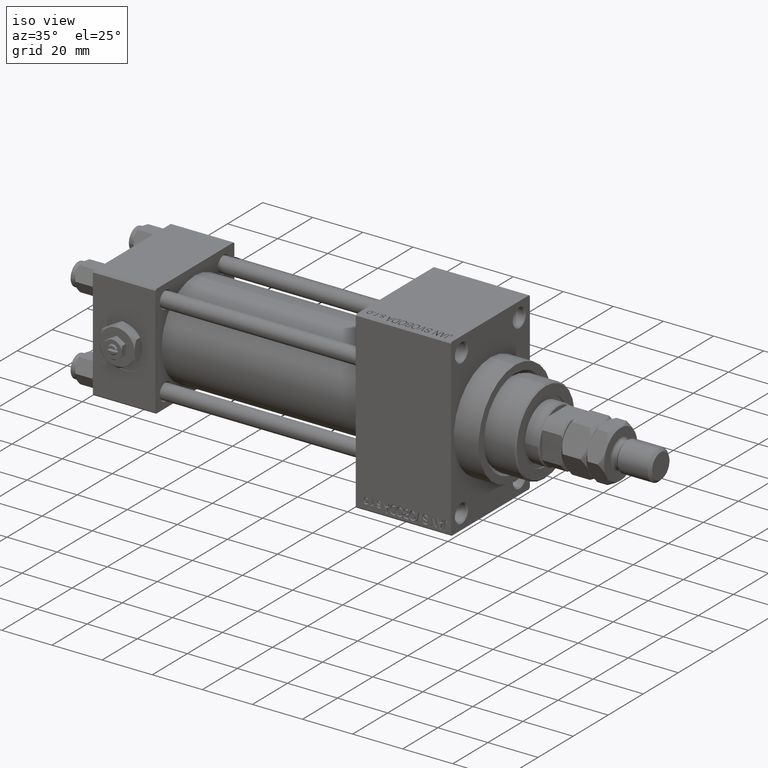
[diagram: clean part render]
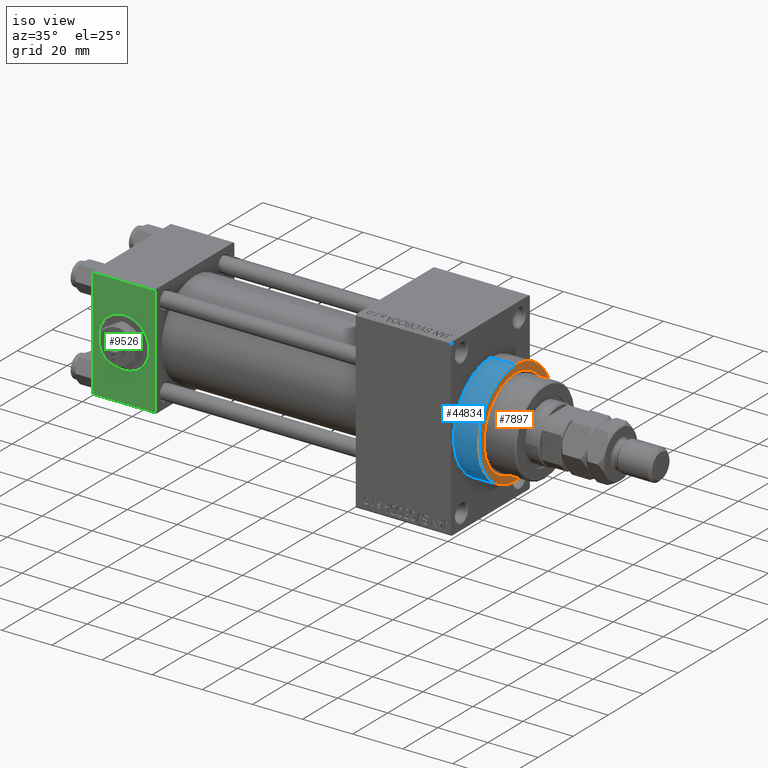
[diagram: same view with three faces highlighted in distinct colors, each labeled with its STEP entity id]
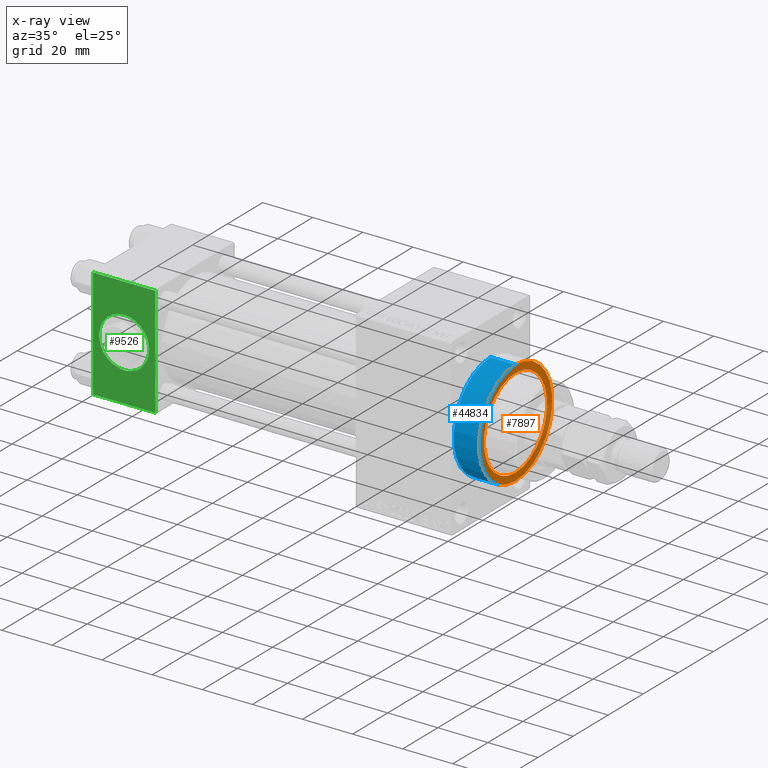
[diagram: x-ray of the same camera — body ghosted, the three highlighted faces saturated]
A machine part, iso view with three faces highlighted in distinct colors.
The next image is the same camera in x-ray (body ghosted, the three faces saturated) — at least one of them is partly hidden behind the body in this view.
Their STEP definitions:

[orange] entity #7897 — the highlighted planar face has unit normal (1, 0, 0).
#2214 = CARTESIAN_POINT ( 'NONE',  ( 153.0000000000000284, 0.000000000000000000, 0.000000000000000000 ) ) ;
#5331 = CARTESIAN_POINT ( 'NONE',  ( 153.0000000000000284, 0.000000000000000000, 0.000000000000000000 ) ) ;
#7376 = CARTESIAN_POINT ( 'NONE',  ( 153.0000000000000284, 0.000000000000000000, -18.00000000000002842 ) ) ;
#7655 = ORIENTED_EDGE ( 'NONE', *, *, #39660, .T. ) ;
#7661 = DIRECTION ( 'NONE',  ( 0.000000000000000000, 0.000000000000000000, -1.000000000000000000 ) ) ;
#7897 = ADVANCED_FACE ( 'NONE', ( #20080, #32258 ), #23877, .T. ) ;
#8017 = CARTESIAN_POINT ( 'NONE',  ( 153.0000000000000284, 0.000000000000000000, 0.000000000000000000 ) ) ;
#8035 = AXIS2_PLACEMENT_3D ( 'NONE', #8017, #35199, #39010 ) ;
#8716 = EDGE_CURVE ( 'NONE', #17501, #32306, #49344, .T. ) ;
#12877 = DIRECTION ( 'NONE',  ( 1.000000000000000000, 0.000000000000000000, 0.000000000000000000 ) ) ;
#13655 = AXIS2_PLACEMENT_3D ( 'NONE', #5331, #40410, #21082 ) ;
#13759 = VERTEX_POINT ( 'NONE', #47033 ) ;
#14240 = VERTEX_POINT ( 'NONE', #39860 ) ;
#15180 = DIRECTION ( 'NONE',  ( 0.000000000000000000, 0.000000000000000000, -1.000000000000000000 ) ) ;
#15281 = AXIS2_PLACEMENT_3D ( 'NONE', #38409, #39403, #7661 ) ;
#17501 = VERTEX_POINT ( 'NONE', #48601 ) ;
#18982 = CARTESIAN_POINT ( 'NONE',  ( 153.0000000000000284, 0.000000000000000000, 0.000000000000000000 ) ) ;
#19410 = ORIENTED_EDGE ( 'NONE', *, *, #40789, .T. ) ;
#20080 = FACE_BOUND ( 'NONE', #22137, .T. ) ;
#21082 = DIRECTION ( 'NONE',  ( 0.000000000000000000, 0.000000000000000000, -1.000000000000000000 ) ) ;
#22137 = EDGE_LOOP ( 'NONE', ( #19410, #26147 ) ) ;
#22766 = EDGE_LOOP ( 'NONE', ( #7655, #23313 ) ) ;
#23313 = ORIENTED_EDGE ( 'NONE', *, *, #41953, .T. ) ;
#23877 = PLANE ( 'NONE',  #13655 ) ;
#26147 = ORIENTED_EDGE ( 'NONE', *, *, #8716, .T. ) ;
#28377 = DIRECTION ( 'NONE',  ( 0.000000000000000000, 0.000000000000000000, -1.000000000000000000 ) ) ;
#29916 = CIRCLE ( 'NONE', #8035, 21.00000000000000000 ) ;
#32258 = FACE_OUTER_BOUND ( 'NONE', #22766, .T. ) ;
#32306 = VERTEX_POINT ( 'NONE', #7376 ) ;
#34497 = DIRECTION ( 'NONE',  ( -1.000000000000000000, -0.000000000000000000, -0.000000000000000000 ) ) ;
#35199 = DIRECTION ( 'NONE',  ( 1.000000000000000000, 0.000000000000000000, 0.000000000000000000 ) ) ;
#38409 = CARTESIAN_POINT ( 'NONE',  ( 153.0000000000000284, 0.000000000000000000, 0.000000000000000000 ) ) ;
#38942 = CIRCLE ( 'NONE', #45422, 18.00000000000002842 ) ;
#39010 = DIRECTION ( 'NONE',  ( 0.000000000000000000, 0.000000000000000000, -1.000000000000000000 ) ) ;
#39403 = DIRECTION ( 'NONE',  ( -1.000000000000000000, -0.000000000000000000, -0.000000000000000000 ) ) ;
#39660 = EDGE_CURVE ( 'NONE', #13759, #14240, #42975, .T. ) ;
#39860 = CARTESIAN_POINT ( 'NONE',  ( 153.0000000000000284, 2.571758278209441661E-15, -21.00000000000000000 ) ) ;
#40410 = DIRECTION ( 'NONE',  ( 1.000000000000000000, 0.000000000000000000, 0.000000000000000000 ) ) ;
#40789 = EDGE_CURVE ( 'NONE', #32306, #17501, #38942, .T. ) ;
#41953 = EDGE_CURVE ( 'NONE', #14240, #13759, #29916, .T. ) ;
#42975 = CIRCLE ( 'NONE', #44603, 21.00000000000000000 ) ;
#44603 = AXIS2_PLACEMENT_3D ( 'NONE', #2214, #12877, #28377 ) ;
#45422 = AXIS2_PLACEMENT_3D ( 'NONE', #18982, #34497, #15180 ) ;
#47033 = CARTESIAN_POINT ( 'NONE',  ( 153.0000000000000284, 0.000000000000000000, 21.00000000000000000 ) ) ;
#48601 = CARTESIAN_POINT ( 'NONE',  ( 153.0000000000000284, 2.204364238465239372E-15, 18.00000000000002842 ) ) ;
#49344 = CIRCLE ( 'NONE', #15281, 18.00000000000002842 ) ;

[blue] entity #44834 — the highlighted cylindrical surface (partial cylindrical patch) has radius 21 mm, axis along (-1, -0, -0).
#2214 = CARTESIAN_POINT ( 'NONE',  ( 153.0000000000000284, 0.000000000000000000, 0.000000000000000000 ) ) ;
#3969 = ORIENTED_EDGE ( 'NONE', *, *, #41827, .T. ) ;
#6086 = EDGE_CURVE ( 'NONE', #13759, #44663, #26560, .T. ) ;
#6261 = DIRECTION ( 'NONE',  ( 1.000000000000000000, 0.000000000000000000, 0.000000000000000000 ) ) ;
#6808 = EDGE_CURVE ( 'NONE', #14240, #20703, #10214, .T. ) ;
#10214 = LINE ( 'NONE', #21373, #42026 ) ;
#12877 = DIRECTION ( 'NONE',  ( 1.000000000000000000, 0.000000000000000000, 0.000000000000000000 ) ) ;
#13759 = VERTEX_POINT ( 'NONE', #47033 ) ;
#14240 = VERTEX_POINT ( 'NONE', #39860 ) ;
#14373 = DIRECTION ( 'NONE',  ( 0.000000000000000000, 0.000000000000000000, -1.000000000000000000 ) ) ;
#14461 = CARTESIAN_POINT ( 'NONE',  ( 153.0000000000000284, 0.000000000000000000, 0.000000000000000000 ) ) ;
#14523 = EDGE_LOOP ( 'NONE', ( #31258, #16690, #19174, #3969 ) ) ;
#16690 = ORIENTED_EDGE ( 'NONE', *, *, #39660, .F. ) ;
#17429 = CARTESIAN_POINT ( 'NONE',  ( 143.0000000000000284, 2.571758278209441661E-15, -21.00000000000000000 ) ) ;
#18260 = CYLINDRICAL_SURFACE ( 'NONE', #34914, 21.00000000000000000 ) ;
#18553 = DIRECTION ( 'NONE',  ( -1.000000000000000000, -0.000000000000000000, -0.000000000000000000 ) ) ;
#18770 = DIRECTION ( 'NONE',  ( -1.000000000000000000, -0.000000000000000000, -0.000000000000000000 ) ) ;
#19174 = ORIENTED_EDGE ( 'NONE', *, *, #6086, .T. ) ;
#20703 = VERTEX_POINT ( 'NONE', #17429 ) ;
#20870 = VECTOR ( 'NONE', #45861, 1000.000000000000000 ) ;
#21373 = CARTESIAN_POINT ( 'NONE',  ( 153.0000000000000284, 2.571758278209441661E-15, -21.00000000000000000 ) ) ;
#22627 = AXIS2_PLACEMENT_3D ( 'NONE', #49417, #6261, #14373 ) ;
#25072 = CIRCLE ( 'NONE', #22627, 21.00000000000000000 ) ;
#25901 = DIRECTION ( 'NONE',  ( 0.000000000000000000, 0.000000000000000000, 1.000000000000000000 ) ) ;
#26560 = LINE ( 'NONE', #38006, #20870 ) ;
#28377 = DIRECTION ( 'NONE',  ( 0.000000000000000000, 0.000000000000000000, -1.000000000000000000 ) ) ;
#31258 = ORIENTED_EDGE ( 'NONE', *, *, #6808, .F. ) ;
#34914 = AXIS2_PLACEMENT_3D ( 'NONE', #14461, #18770, #25901 ) ;
#37594 = FACE_OUTER_BOUND ( 'NONE', #14523, .T. ) ;
#38006 = CARTESIAN_POINT ( 'NONE',  ( 153.0000000000000284, 0.000000000000000000, 21.00000000000000000 ) ) ;
#39660 = EDGE_CURVE ( 'NONE', #13759, #14240, #42975, .T. ) ;
#39860 = CARTESIAN_POINT ( 'NONE',  ( 153.0000000000000284, 2.571758278209441661E-15, -21.00000000000000000 ) ) ;
#41827 = EDGE_CURVE ( 'NONE', #44663, #20703, #25072, .T. ) ;
#42026 = VECTOR ( 'NONE', #18553, 1000.000000000000000 ) ;
#42975 = CIRCLE ( 'NONE', #44603, 21.00000000000000000 ) ;
#44603 = AXIS2_PLACEMENT_3D ( 'NONE', #2214, #12877, #28377 ) ;
#44663 = VERTEX_POINT ( 'NONE', #46512 ) ;
#44834 = ADVANCED_FACE ( 'NONE', ( #37594 ), #18260, .T. ) ;
#45861 = DIRECTION ( 'NONE',  ( -1.000000000000000000, -0.000000000000000000, -0.000000000000000000 ) ) ;
#46512 = CARTESIAN_POINT ( 'NONE',  ( 143.0000000000000284, 0.000000000000000000, 21.00000000000000000 ) ) ;
#47033 = CARTESIAN_POINT ( 'NONE',  ( 153.0000000000000284, 0.000000000000000000, 21.00000000000000000 ) ) ;
#49417 = CARTESIAN_POINT ( 'NONE',  ( 143.0000000000000284, 0.000000000000000000, 0.000000000000000000 ) ) ;

[green] entity #9526 — the highlighted planar face has unit normal (0, 1, 0).
#741 = CARTESIAN_POINT ( 'NONE',  ( 0.000000000000000000, -22.50000000000000000, 22.00000000000000000 ) ) ;
#1246 = CARTESIAN_POINT ( 'NONE',  ( 25.00000000000000000, -22.50000000000000000, -21.99999999999998579 ) ) ;
#4608 = AXIS2_PLACEMENT_3D ( 'NONE', #11312, #26044, #26801 ) ;
#6424 = FACE_BOUND ( 'NONE', #32419, .T. ) ;
#9526 = ADVANCED_FACE ( 'NONE', ( #6424, #45532 ), #40984, .F. ) ;
#10422 = DIRECTION ( 'NONE',  ( 0.000000000000000000, -1.000000000000000000, -8.673617379884036705E-17 ) ) ;
#10738 = CARTESIAN_POINT ( 'NONE',  ( 25.00000000000000000, -22.50000000000000000, 22.50000000000000000 ) ) ;
#10858 = CARTESIAN_POINT ( 'NONE',  ( 25.00000000000000000, -22.50000000000000000, 22.50000000000000000 ) ) ;
#11312 = CARTESIAN_POINT ( 'NONE',  ( 12.50000000000000000, -22.50000000000000000, 0.000000000000000000 ) ) ;
#13024 = AXIS2_PLACEMENT_3D ( 'NONE', #18006, #10422, #18763 ) ;
#13692 = CARTESIAN_POINT ( 'NONE',  ( 12.50000000000000178, -22.50000000000000000, 9.999999999999996447 ) ) ;
#13889 = LINE ( 'NONE', #44885, #33936 ) ;
#13926 = VECTOR ( 'NONE', #15785, 1000.000000000000000 ) ;
#15248 = EDGE_CURVE ( 'NONE', #44966, #25886, #13889, .T. ) ;
#15785 = DIRECTION ( 'NONE',  ( 0.000000000000000000, 0.000000000000000000, -1.000000000000000000 ) ) ;
#17263 = EDGE_CURVE ( 'NONE', #21454, #25368, #40315, .T. ) ;
#18006 = CARTESIAN_POINT ( 'NONE',  ( 12.50000000000000000, -22.50000000000000000, 0.000000000000000000 ) ) ;
#18207 = DIRECTION ( 'NONE',  ( 0.000000000000000000, 0.000000000000000000, -1.000000000000000000 ) ) ;
#18753 = ORIENTED_EDGE ( 'NONE', *, *, #46095, .F. ) ;
#18763 = DIRECTION ( 'NONE',  ( 0.000000000000000000, 0.000000000000000000, -1.000000000000000000 ) ) ;
#19092 = LINE ( 'NONE', #38926, #13926 ) ;
#20719 = CARTESIAN_POINT ( 'NONE',  ( 0.000000000000000000, -22.50000000000000000, -21.99999999999997158 ) ) ;
#21454 = VERTEX_POINT ( 'NONE', #13692 ) ;
#21507 = DIRECTION ( 'NONE',  ( -1.000000000000000000, 0.000000000000000000, 0.000000000000000000 ) ) ;
#25233 = DIRECTION ( 'NONE',  ( 0.000000000000000000, -0.000000000000000000, 1.000000000000000000 ) ) ;
#25368 = VERTEX_POINT ( 'NONE', #37598 ) ;
#25886 = VERTEX_POINT ( 'NONE', #741 ) ;
#26044 = DIRECTION ( 'NONE',  ( 0.000000000000000000, -1.000000000000000000, -8.673617379884036705E-17 ) ) ;
#26218 = DIRECTION ( 'NONE',  ( -0.000000000000000000, 1.000000000000000000, 0.000000000000000000 ) ) ;
#26801 = DIRECTION ( 'NONE',  ( 0.000000000000000000, 0.000000000000000000, -1.000000000000000000 ) ) ;
#26944 = EDGE_CURVE ( 'NONE', #45524, #45964, #36803, .T. ) ;
#31208 = CARTESIAN_POINT ( 'NONE',  ( 25.00000000000000000, -22.50000000000000000, 22.00000000000000000 ) ) ;
#31635 = EDGE_LOOP ( 'NONE', ( #36141, #33003, #38703, #48804 ) ) ;
#32419 = EDGE_LOOP ( 'NONE', ( #18753, #43469 ) ) ;
#32518 = CARTESIAN_POINT ( 'NONE',  ( 25.00000000000000000, -22.50000000000000000, -21.99999999999997158 ) ) ;
#33003 = ORIENTED_EDGE ( 'NONE', *, *, #26944, .T. ) ;
#33936 = VECTOR ( 'NONE', #21507, 1000.000000000000000 ) ;
#34946 = CIRCLE ( 'NONE', #13024, 9.999999999999996447 ) ;
#36141 = ORIENTED_EDGE ( 'NONE', *, *, #48162, .T. ) ;
#36803 = LINE ( 'NONE', #1246, #37784 ) ;
#37598 = CARTESIAN_POINT ( 'NONE',  ( 12.50000000000000000, -22.50000000000000000, -9.999999999999996447 ) ) ;
#37784 = VECTOR ( 'NONE', #47471, 1000.000000000000000 ) ;
#38073 = AXIS2_PLACEMENT_3D ( 'NONE', #10738, #26218, #25233 ) ;
#38703 = ORIENTED_EDGE ( 'NONE', *, *, #47327, .F. ) ;
#38926 = CARTESIAN_POINT ( 'NONE',  ( 0.000000000000000000, -22.50000000000000000, 22.50000000000000000 ) ) ;
#40315 = CIRCLE ( 'NONE', #4608, 9.999999999999996447 ) ;
#40984 = PLANE ( 'NONE',  #38073 ) ;
#43469 = ORIENTED_EDGE ( 'NONE', *, *, #17263, .F. ) ;
#44885 = CARTESIAN_POINT ( 'NONE',  ( 25.00000000000000000, -22.50000000000000000, 22.00000000000000000 ) ) ;
#44966 = VERTEX_POINT ( 'NONE', #31208 ) ;
#45161 = LINE ( 'NONE', #10858, #45585 ) ;
#45524 = VERTEX_POINT ( 'NONE', #20719 ) ;
#45532 = FACE_OUTER_BOUND ( 'NONE', #31635, .T. ) ;
#45585 = VECTOR ( 'NONE', #18207, 1000.000000000000000 ) ;
#45964 = VERTEX_POINT ( 'NONE', #32518 ) ;
#46095 = EDGE_CURVE ( 'NONE', #25368, #21454, #34946, .T. ) ;
#47327 = EDGE_CURVE ( 'NONE', #44966, #45964, #45161, .T. ) ;
#47471 = DIRECTION ( 'NONE',  ( 1.000000000000000000, 0.000000000000000000, 0.000000000000000000 ) ) ;
#48162 = EDGE_CURVE ( 'NONE', #25886, #45524, #19092, .T. ) ;
#48804 = ORIENTED_EDGE ( 'NONE', *, *, #15248, .T. ) ;